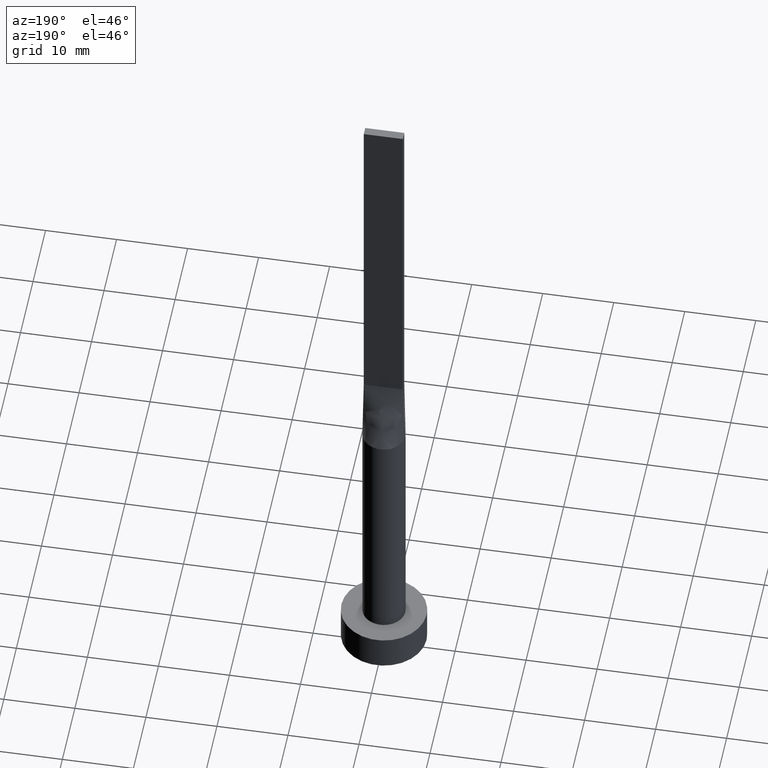
[diagram: clean part render]
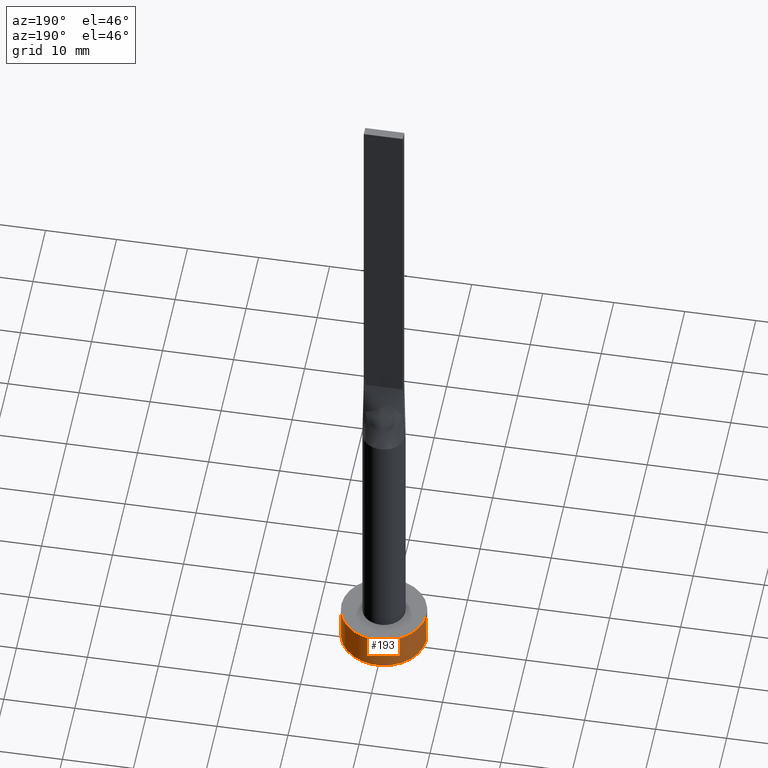
[diagram: same view with one face highlighted and labeled with its STEP entity id]
A machine part, auxiliary view. The second image highlights one B-rep face of the part: STEP entity #193.
In plain terms, the highlighted cylindrical surface (partial cylindrical patch) has radius 6 mm, axis along (-0, -0, -1).
Its self-contained STEP definition (entity closure, byte-faithful):
#3 = CARTESIAN_POINT ( 'NONE',  ( -6.000000000000000888, 0.000000000000000000, 5.000000000000000000 ) ) ;
#15 = VECTOR ( 'NONE', #151, 1000.000000000000000 ) ;
#35 = AXIS2_PLACEMENT_3D ( 'NONE', #413, #315, #456 ) ;
#58 = ORIENTED_EDGE ( 'NONE', *, *, #369, .T. ) ;
#66 = EDGE_CURVE ( 'NONE', #418, #104, #378, .T. ) ;
#70 = DIRECTION ( 'NONE',  ( -0.000000000000000000, -0.000000000000000000, -1.000000000000000000 ) ) ;
#76 = DIRECTION ( 'NONE',  ( 1.000000000000000000, 0.000000000000000000, 0.000000000000000000 ) ) ;
#77 = CARTESIAN_POINT ( 'NONE',  ( 0.000000000000000000, 0.000000000000000000, 5.000000000000000000 ) ) ;
#86 = CARTESIAN_POINT ( 'NONE',  ( -6.000000000000000888, 0.000000000000000000, 0.000000000000000000 ) ) ;
#104 = VERTEX_POINT ( 'NONE', #86 ) ;
#151 = DIRECTION ( 'NONE',  ( -0.000000000000000000, -0.000000000000000000, -1.000000000000000000 ) ) ;
#173 = AXIS2_PLACEMENT_3D ( 'NONE', #252, #446, #76 ) ;
#180 = LINE ( 'NONE', #362, #239 ) ;
#193 = ADVANCED_FACE ( 'NONE', ( #354 ), #303, .T. ) ;
#221 = ORIENTED_EDGE ( 'NONE', *, *, #571, .F. ) ;
#225 = EDGE_LOOP ( 'NONE', ( #221, #486, #58, #445 ) ) ;
#239 = VECTOR ( 'NONE', #70, 1000.000000000000000 ) ;
#252 = CARTESIAN_POINT ( 'NONE',  ( 0.000000000000000000, 0.000000000000000000, 5.000000000000000000 ) ) ;
#280 = CARTESIAN_POINT ( 'NONE',  ( 6.000000000000000888, 7.347880794884120722E-16, 0.000000000000000000 ) ) ;
#295 = CARTESIAN_POINT ( 'NONE',  ( -6.000000000000000888, 0.000000000000000000, 5.000000000000000000 ) ) ;
#303 = CYLINDRICAL_SURFACE ( 'NONE', #553, 6.000000000000000888 ) ;
#315 = DIRECTION ( 'NONE',  ( 0.000000000000000000, 0.000000000000000000, 1.000000000000000000 ) ) ;
#317 = VERTEX_POINT ( 'NONE', #507 ) ;
#340 = VERTEX_POINT ( 'NONE', #280 ) ;
#354 = FACE_OUTER_BOUND ( 'NONE', #225, .T. ) ;
#362 = CARTESIAN_POINT ( 'NONE',  ( 6.000000000000000888, 7.347880794884120722E-16, 5.000000000000000000 ) ) ;
#364 = CIRCLE ( 'NONE', #173, 6.000000000000000888 ) ;
#369 = EDGE_CURVE ( 'NONE', #340, #104, #489, .T. ) ;
#378 = LINE ( 'NONE', #295, #15 ) ;
#397 = DIRECTION ( 'NONE',  ( -0.000000000000000000, -0.000000000000000000, -1.000000000000000000 ) ) ;
#413 = CARTESIAN_POINT ( 'NONE',  ( 0.000000000000000000, 0.000000000000000000, 0.000000000000000000 ) ) ;
#418 = VERTEX_POINT ( 'NONE', #3 ) ;
#425 = EDGE_CURVE ( 'NONE', #317, #340, #180, .T. ) ;
#445 = ORIENTED_EDGE ( 'NONE', *, *, #66, .F. ) ;
#446 = DIRECTION ( 'NONE',  ( 0.000000000000000000, 0.000000000000000000, 1.000000000000000000 ) ) ;
#456 = DIRECTION ( 'NONE',  ( 1.000000000000000000, 0.000000000000000000, 0.000000000000000000 ) ) ;
#485 = DIRECTION ( 'NONE',  ( -1.000000000000000000, 0.000000000000000000, 0.000000000000000000 ) ) ;
#486 = ORIENTED_EDGE ( 'NONE', *, *, #425, .T. ) ;
#489 = CIRCLE ( 'NONE', #35, 6.000000000000000888 ) ;
#507 = CARTESIAN_POINT ( 'NONE',  ( 6.000000000000000888, 7.347880794884120722E-16, 5.000000000000000000 ) ) ;
#553 = AXIS2_PLACEMENT_3D ( 'NONE', #77, #397, #485 ) ;
#571 = EDGE_CURVE ( 'NONE', #317, #418, #364, .T. ) ;